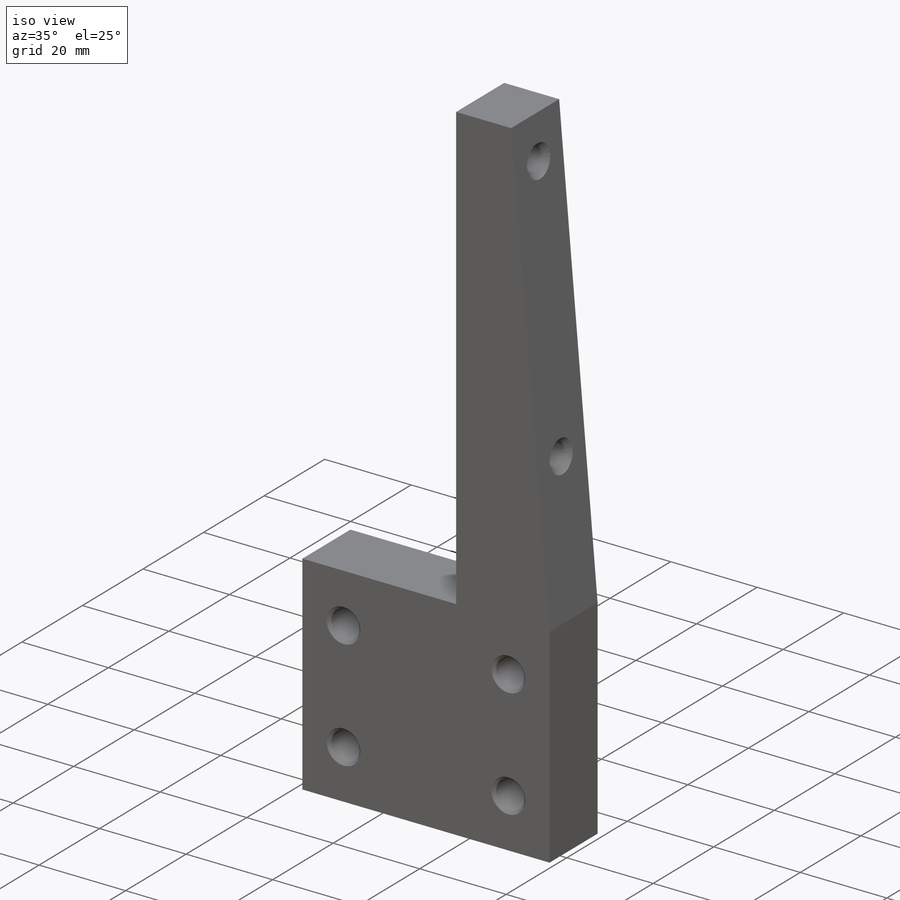
[diagram: iso view]
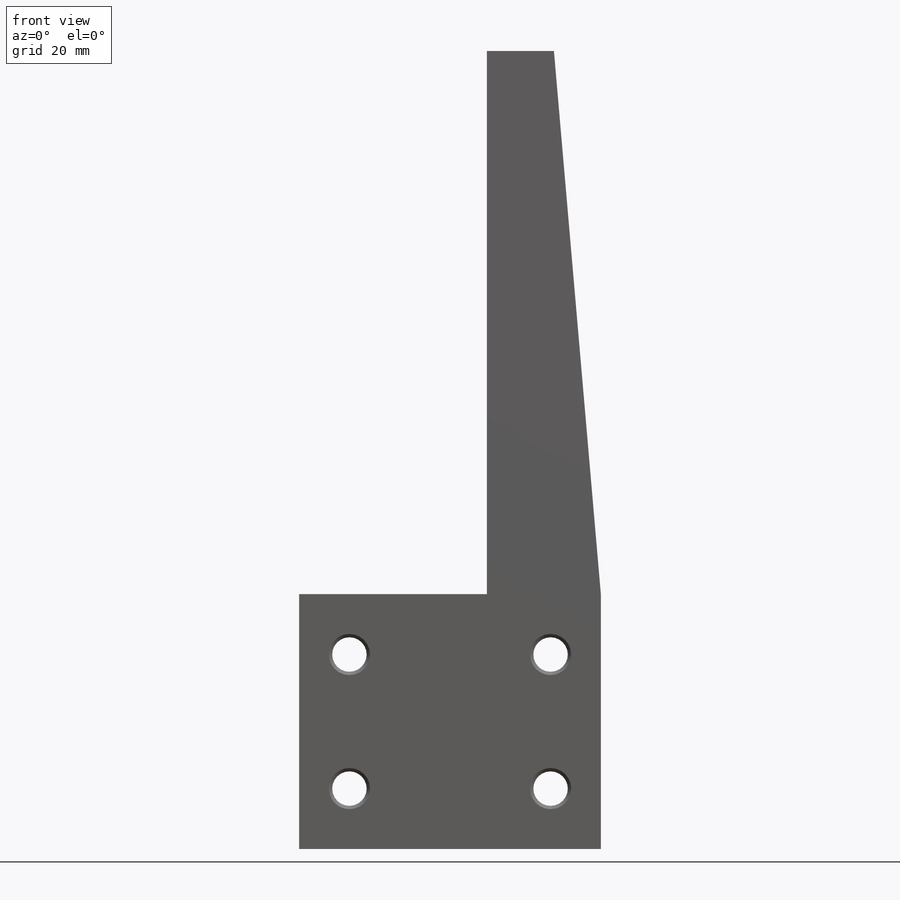
[diagram: front view]
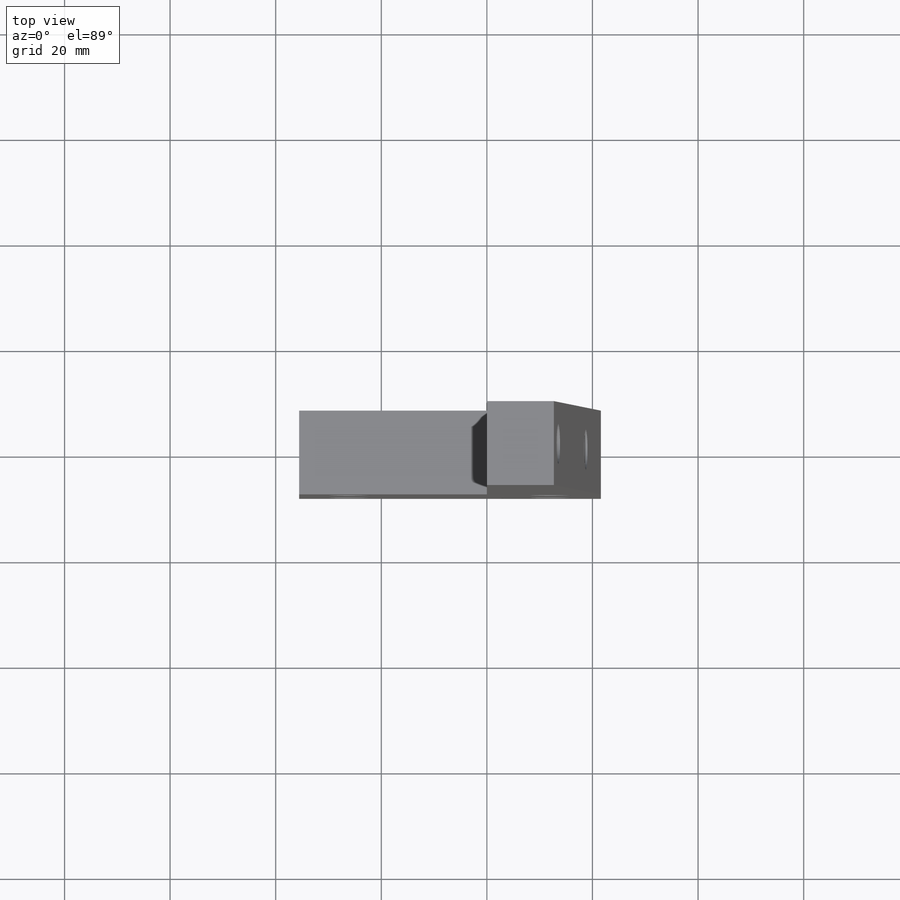
[diagram: top view]
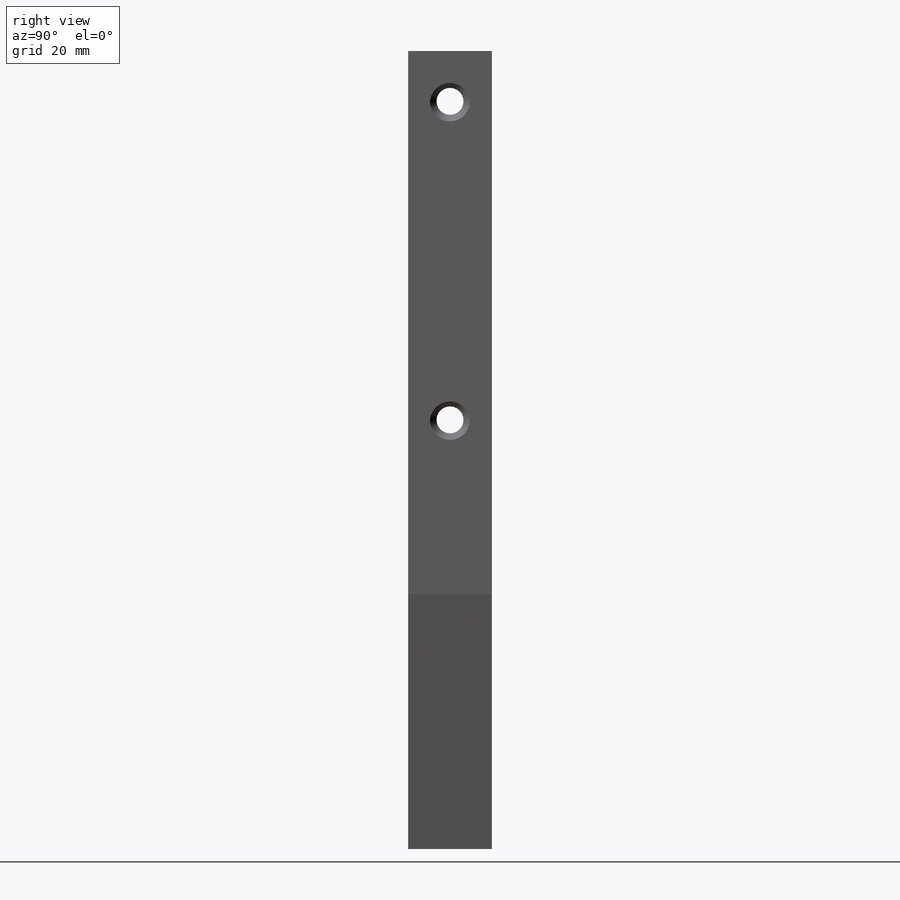
[diagram: right view]
SOLIDWORKS PART (.sldprt)
format: sldprt  version: not decoded by parser v0  size: 259,584 bytes
history: native  units: mm
features: sketch x7, hole x2, thread x2, material x1, extrude x1 (+11 scaffold rows collapsed)
feature tree (24):
  scaffold x11  (default folders/planes/origin — collapsed)
  material  "6061-T6 (SS)"
  sketch  "Sketch1"  dims[c1.D1=35.56mm c1.D2=57.15mm c1.D3=101.6mm c1.D4=12.7mm c1.D5=48.26mm c1.D6=1.27mm c2.D3=101.6mm]
  extrude  "Boss-Extrude1"  Depth=15.875mm
  sketch  "Sketch2"  dims[D1=25.4mm D2=38.1mm]
  hole  "1/4 Clearance Hole1"  Diameter=6.5278mm Depth=15.875mm
  sketch  "Sketch4"
  sketch  "Sketch3"  dims[hole-wizard template sketch: 46 standard entries collapsed; hole parameters kept: c15.Thru Hole Dia.=6.5278mm c15.Thru Hole Depth=15.875mm c15.Near C'Sink Dia.=7.7978mm c15.D4=~3.666174mm c15.Near C'Sink Angle=90.0deg c15.Far C'Sink Dia.=7.7978mm c15.D6=~9.919017mm c15.Far C'Sink Angle=90.0deg]
  sketch  "Sketch5"  dims[D1=31.75mm D2=60.325mm]
  hole  "1/4-20 Tapped Hole1"  Diameter=5.1054mm Depth=13.523148mm
  sketch  "Sketch7"
  sketch  "Sketch6"  dims[hole-wizard template sketch: 47 standard entries collapsed; hole parameters kept: c15.Thru Tap Drill Depth=~13.523148mm c15.Near C'Sink Dia.=7.62mm c15.D4=~3.666174mm c15.Near C'Sink Angle=90.0deg c15.Far C'Sink Dia.=7.62mm c15.D6=~9.919017mm c15.Far C'Sink Angle=90.0deg]
  thread  "Hole Thread1"  Diameter=6.35mm  [1 undecoded]
  thread  "Hole Thread2"  Diameter=6.35mm  [1 undecoded]
decode coverage: 10 of 12 modeling features carry decoded parameters
note: ~ marks probable driven/reference dimensions
note: 2 parameter values undecoded
note: suppression state not decoded; provenance and decode notes live in map.json
